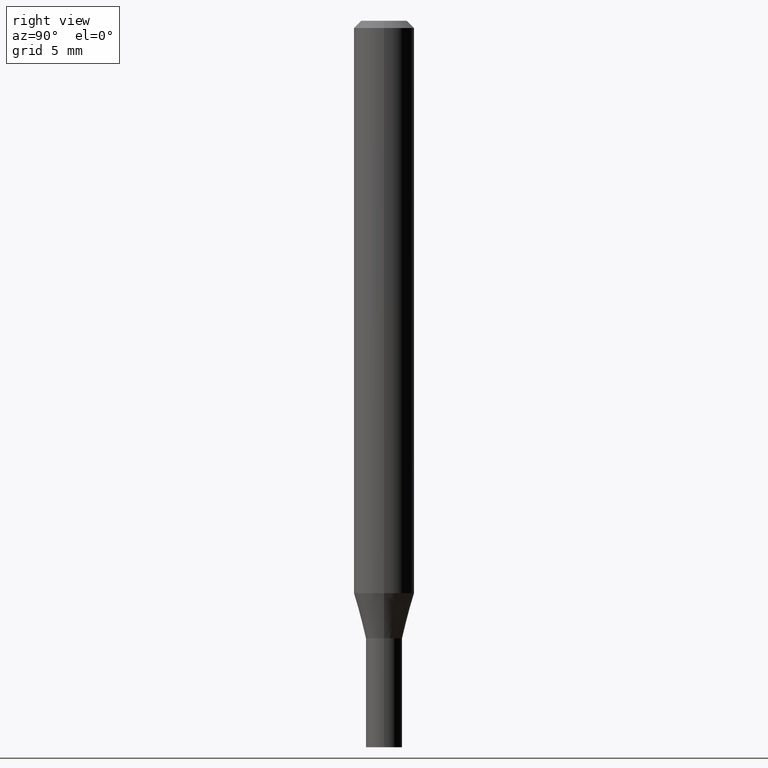
[diagram: clean part render]
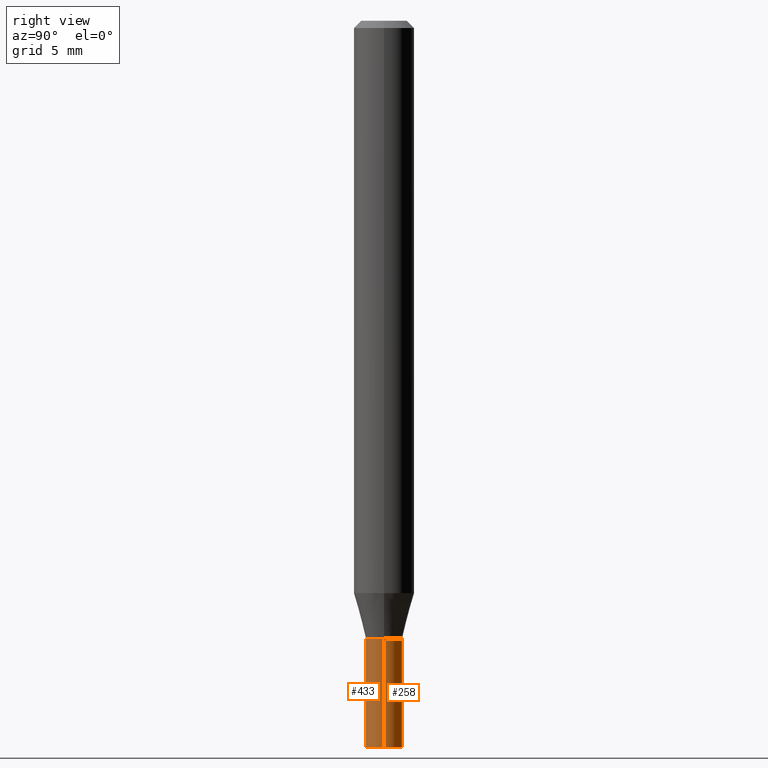
[diagram: same view with one multi-face feature highlighted, each face labeled with its STEP entity id]
A machine part, right view. The highlighted faces form ONE feature: a constant-radius fillet chain: 2 tangent blend faces with common blend radius 0.9525 mm. The faces share edges in the B-rep.
Their STEP definitions:
[1] entity #433 (Cylinder):
#8 = ORIENTED_EDGE ( 'NONE', *, *, #145, .T. ) ;
#9 = DIRECTION ( 'NONE',  ( -2.445468806185136597E-29, 3.491481338843145583E-15, 1.000000000000000000 ) ) ;
#17 = DIRECTION ( 'NONE',  ( 1.000000000000000000, -6.982962677686268288E-15, 0.000000000000000000 ) ) ;
#35 = AXIS2_PLACEMENT_3D ( 'NONE', #348, #9, #17 ) ;
#36 = CARTESIAN_POINT ( 'NONE',  ( 0.000000000000000000, 0.000000000000000000, 0.000000000000000000 ) ) ;
#44 = VECTOR ( 'NONE', #55, 39.37007874015748143 ) ;
#50 = DIRECTION ( 'NONE',  ( 1.000000000000000000, -6.982962677686268288E-15, 0.000000000000000000 ) ) ;
#55 = DIRECTION ( 'NONE',  ( -2.445468806185136877E-29, 3.491481338843145188E-15, 1.000000000000000000 ) ) ;
#73 = CYLINDRICAL_SURFACE ( 'NONE', #245, 0.03749999999999999861 ) ;
#83 = ORIENTED_EDGE ( 'NONE', *, *, #390, .F. ) ;
#110 = LINE ( 'NONE', #409, #289 ) ;
#131 = EDGE_LOOP ( 'NONE', ( #83, #342, #8, #262 ) ) ;
#145 = EDGE_CURVE ( 'NONE', #425, #223, #110, .T. ) ;
#178 = CIRCLE ( 'NONE', #35, 0.03749999999999999861 ) ;
#187 = CARTESIAN_POINT ( 'NONE',  ( 0.03749999999999999861, -4.713499807438246596E-15, -1.275000000000000133 ) ) ;
#191 = CARTESIAN_POINT ( 'NONE',  ( -0.03749999999999999861, -4.577976831734827473E-15, -1.500000000000000222 ) ) ;
#201 = EDGE_CURVE ( 'NONE', #214, #425, #178, .T. ) ;
#202 = CARTESIAN_POINT ( 'NONE',  ( -0.03749999999999999861, -4.577976831734827473E-15, -1.275000000000000133 ) ) ;
#206 = LINE ( 'NONE', #391, #44 ) ;
#214 = VERTEX_POINT ( 'NONE', #191 ) ;
#221 = DIRECTION ( 'NONE',  ( -2.445468806185136877E-29, 3.491481338843145188E-15, 1.000000000000000000 ) ) ;
#223 = VERTEX_POINT ( 'NONE', #187 ) ;
#242 = DIRECTION ( 'NONE',  ( -2.445468806185136597E-29, 3.491481338843145583E-15, 1.000000000000000000 ) ) ;
#245 = AXIS2_PLACEMENT_3D ( 'NONE', #36, #299, #462 ) ;
#262 = ORIENTED_EDGE ( 'NONE', *, *, #445, .F. ) ;
#289 = VECTOR ( 'NONE', #221, 39.37007874015748143 ) ;
#299 = DIRECTION ( 'NONE',  ( -2.445468806185136597E-29, 3.491481338843145583E-15, 1.000000000000000000 ) ) ;
#338 = CARTESIAN_POINT ( 'NONE',  ( 0.03749999999999999861, -5.499083108677953967E-15, -1.500000000000000222 ) ) ;
#342 = ORIENTED_EDGE ( 'NONE', *, *, #201, .T. ) ;
#343 = CIRCLE ( 'NONE', #396, 0.03749999999999999861 ) ;
#348 = CARTESIAN_POINT ( 'NONE',  ( 3.668203209277704895E-29, -5.237222008264718177E-15, -1.500000000000000222 ) ) ;
#390 = EDGE_CURVE ( 'NONE', #214, #448, #206, .T. ) ;
#391 = CARTESIAN_POINT ( 'NONE',  ( -0.03749999999999999861, 2.664535259100375598E-16, -1.844600658845589458E-30 ) ) ;
#392 = CARTESIAN_POINT ( 'NONE',  ( 3.117972727886049049E-29, -4.451638707025011594E-15, -1.275000000000000133 ) ) ;
#396 = AXIS2_PLACEMENT_3D ( 'NONE', #392, #242, #50 ) ;
#402 = FACE_OUTER_BOUND ( 'NONE', #131, .T. ) ;
#409 = CARTESIAN_POINT ( 'NONE',  ( 0.03749999999999999861, -2.618611004132350016E-16, 1.828566290923475922E-30 ) ) ;
#425 = VERTEX_POINT ( 'NONE', #338 ) ;
#433 = ADVANCED_FACE ( 'NONE', ( #402 ), #73, .T. ) ;
#445 = EDGE_CURVE ( 'NONE', #448, #223, #343, .T. ) ;
#448 = VERTEX_POINT ( 'NONE', #202 ) ;
#462 = DIRECTION ( 'NONE',  ( 1.000000000000000000, -6.982962677686266711E-15, 4.876176775795935793E-29 ) ) ;
[2] entity #258 (Cylinder):
#44 = VECTOR ( 'NONE', #55, 39.37007874015748143 ) ;
#47 = FACE_OUTER_BOUND ( 'NONE', #421, .T. ) ;
#48 = ORIENTED_EDGE ( 'NONE', *, *, #332, .F. ) ;
#55 = DIRECTION ( 'NONE',  ( -2.445468806185136877E-29, 3.491481338843145188E-15, 1.000000000000000000 ) ) ;
#82 = ORIENTED_EDGE ( 'NONE', *, *, #145, .F. ) ;
#88 = ORIENTED_EDGE ( 'NONE', *, *, #281, .T. ) ;
#93 = CIRCLE ( 'NONE', #272, 0.03749999999999999861 ) ;
#110 = LINE ( 'NONE', #409, #289 ) ;
#120 = CARTESIAN_POINT ( 'NONE',  ( 3.668203209277704895E-29, -5.237222008264718177E-15, -1.500000000000000222 ) ) ;
#126 = DIRECTION ( 'NONE',  ( 1.000000000000000000, -6.982962677686266711E-15, 4.876176775795935793E-29 ) ) ;
#145 = EDGE_CURVE ( 'NONE', #425, #223, #110, .T. ) ;
#187 = CARTESIAN_POINT ( 'NONE',  ( 0.03749999999999999861, -4.713499807438246596E-15, -1.275000000000000133 ) ) ;
#191 = CARTESIAN_POINT ( 'NONE',  ( -0.03749999999999999861, -4.577976831734827473E-15, -1.500000000000000222 ) ) ;
#202 = CARTESIAN_POINT ( 'NONE',  ( -0.03749999999999999861, -4.577976831734827473E-15, -1.275000000000000133 ) ) ;
#206 = LINE ( 'NONE', #391, #44 ) ;
#214 = VERTEX_POINT ( 'NONE', #191 ) ;
#221 = DIRECTION ( 'NONE',  ( -2.445468806185136877E-29, 3.491481338843145188E-15, 1.000000000000000000 ) ) ;
#223 = VERTEX_POINT ( 'NONE', #187 ) ;
#226 = DIRECTION ( 'NONE',  ( 1.000000000000000000, -6.982962677686268288E-15, 0.000000000000000000 ) ) ;
#244 = CARTESIAN_POINT ( 'NONE',  ( 3.117972727886049049E-29, -4.451638707025011594E-15, -1.275000000000000133 ) ) ;
#258 = ADVANCED_FACE ( 'NONE', ( #47 ), #303, .T. ) ;
#264 = DIRECTION ( 'NONE',  ( -2.445468806185136597E-29, 3.491481338843145583E-15, 1.000000000000000000 ) ) ;
#272 = AXIS2_PLACEMENT_3D ( 'NONE', #244, #388, #324 ) ;
#281 = EDGE_CURVE ( 'NONE', #425, #214, #407, .T. ) ;
#289 = VECTOR ( 'NONE', #221, 39.37007874015748143 ) ;
#303 = CYLINDRICAL_SURFACE ( 'NONE', #328, 0.03749999999999999861 ) ;
#324 = DIRECTION ( 'NONE',  ( 1.000000000000000000, -6.982962677686268288E-15, 0.000000000000000000 ) ) ;
#328 = AXIS2_PLACEMENT_3D ( 'NONE', #451, #443, #126 ) ;
#332 = EDGE_CURVE ( 'NONE', #223, #448, #93, .T. ) ;
#338 = CARTESIAN_POINT ( 'NONE',  ( 0.03749999999999999861, -5.499083108677953967E-15, -1.500000000000000222 ) ) ;
#380 = ORIENTED_EDGE ( 'NONE', *, *, #390, .T. ) ;
#387 = AXIS2_PLACEMENT_3D ( 'NONE', #120, #264, #226 ) ;
#388 = DIRECTION ( 'NONE',  ( -2.445468806185136597E-29, 3.491481338843145583E-15, 1.000000000000000000 ) ) ;
#390 = EDGE_CURVE ( 'NONE', #214, #448, #206, .T. ) ;
#391 = CARTESIAN_POINT ( 'NONE',  ( -0.03749999999999999861, 2.664535259100375598E-16, -1.844600658845589458E-30 ) ) ;
#407 = CIRCLE ( 'NONE', #387, 0.03749999999999999861 ) ;
#409 = CARTESIAN_POINT ( 'NONE',  ( 0.03749999999999999861, -2.618611004132350016E-16, 1.828566290923475922E-30 ) ) ;
#421 = EDGE_LOOP ( 'NONE', ( #88, #380, #48, #82 ) ) ;
#425 = VERTEX_POINT ( 'NONE', #338 ) ;
#443 = DIRECTION ( 'NONE',  ( -2.445468806185136597E-29, 3.491481338843145583E-15, 1.000000000000000000 ) ) ;
#448 = VERTEX_POINT ( 'NONE', #202 ) ;
#451 = CARTESIAN_POINT ( 'NONE',  ( 0.000000000000000000, 0.000000000000000000, 0.000000000000000000 ) ) ;